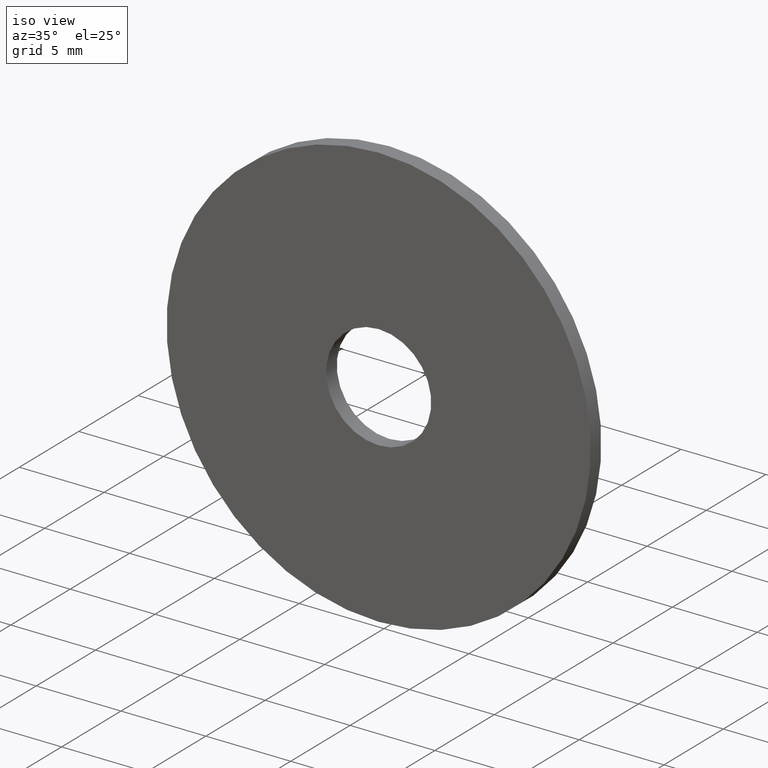
[diagram: clean part render]
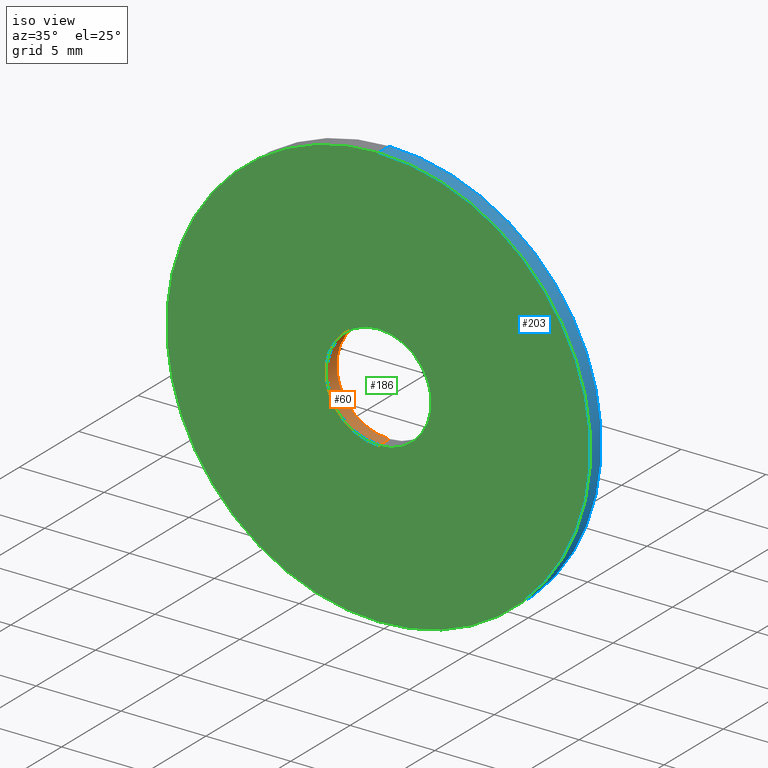
[diagram: same view with three faces highlighted in distinct colors, each labeled with its STEP entity id]
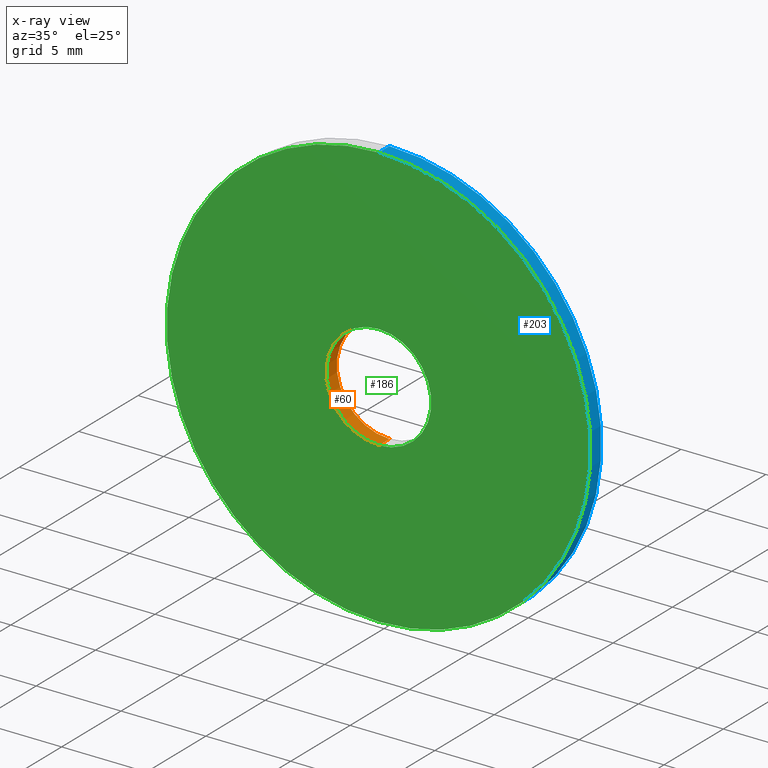
[diagram: x-ray of the same camera — body ghosted, the three highlighted faces saturated]
A machine part, iso view with three faces highlighted in distinct colors.
The next image is the same camera in x-ray (body ghosted, the three faces saturated) — at least one of them is partly hidden behind the body in this view.
Their STEP definitions:

[orange] entity #60 — the highlighted cylindrical surface (partial cylindrical patch) has radius 3.1 mm, axis along (-0, 1, -0).
#4 = VERTEX_POINT ( 'NONE', #39 ) ;
#5 = VERTEX_POINT ( 'NONE', #143 ) ;
#11 = DIRECTION ( 'NONE',  ( -0.000000000000000000, 1.000000000000000000, -0.000000000000000000 ) ) ;
#12 = DIRECTION ( 'NONE',  ( -0.000000000000000000, 1.000000000000000000, -0.000000000000000000 ) ) ;
#13 = CARTESIAN_POINT ( 'NONE',  ( 0.000000000000000000, -0.4500000000000000111, 0.000000000000000000 ) ) ;
#22 = ORIENTED_EDGE ( 'NONE', *, *, #153, .F. ) ;
#27 = AXIS2_PLACEMENT_3D ( 'NONE', #13, #114, #87 ) ;
#28 = DIRECTION ( 'NONE',  ( 0.000000000000000000, 0.000000000000000000, 1.000000000000000000 ) ) ;
#32 = CARTESIAN_POINT ( 'NONE',  ( 0.000000000000000000, -0.4500000000000000111, 0.000000000000000000 ) ) ;
#37 = AXIS2_PLACEMENT_3D ( 'NONE', #32, #11, #28 ) ;
#39 = CARTESIAN_POINT ( 'NONE',  ( 3.796405077356794918E-16, -0.4500000000000000111, -3.100000000000000089 ) ) ;
#40 = EDGE_CURVE ( 'NONE', #5, #185, #121, .T. ) ;
#41 = CIRCLE ( 'NONE', #27, 3.100000000000000089 ) ;
#44 = CARTESIAN_POINT ( 'NONE',  ( 3.796405077356794918E-16, -0.4500000000000000111, -3.100000000000000089 ) ) ;
#56 = ORIENTED_EDGE ( 'NONE', *, *, #40, .F. ) ;
#60 = ADVANCED_FACE ( 'NONE', ( #167 ), #207, .F. ) ;
#65 = VECTOR ( 'NONE', #241, 1000.000000000000000 ) ;
#66 = CARTESIAN_POINT ( 'NONE',  ( 0.000000000000000000, 0.4500000000000000111, 3.100000000000000089 ) ) ;
#70 = CARTESIAN_POINT ( 'NONE',  ( 0.000000000000000000, -0.4500000000000000111, 3.100000000000000089 ) ) ;
#87 = DIRECTION ( 'NONE',  ( 0.000000000000000000, 0.000000000000000000, 1.000000000000000000 ) ) ;
#95 = CIRCLE ( 'NONE', #127, 3.100000000000000089 ) ;
#107 = EDGE_LOOP ( 'NONE', ( #22, #124, #199, #56 ) ) ;
#113 = CARTESIAN_POINT ( 'NONE',  ( 0.000000000000000000, 0.4500000000000000111, 0.000000000000000000 ) ) ;
#114 = DIRECTION ( 'NONE',  ( 0.000000000000000000, 1.000000000000000000, 0.000000000000000000 ) ) ;
#117 = EDGE_CURVE ( 'NONE', #180, #185, #95, .T. ) ;
#121 = LINE ( 'NONE', #70, #231 ) ;
#124 = ORIENTED_EDGE ( 'NONE', *, *, #232, .T. ) ;
#127 = AXIS2_PLACEMENT_3D ( 'NONE', #113, #166, #128 ) ;
#128 = DIRECTION ( 'NONE',  ( 0.000000000000000000, 0.000000000000000000, 1.000000000000000000 ) ) ;
#143 = CARTESIAN_POINT ( 'NONE',  ( 0.000000000000000000, -0.4500000000000000111, 3.100000000000000089 ) ) ;
#149 = CARTESIAN_POINT ( 'NONE',  ( 3.796405077356794918E-16, 0.4500000000000000111, -3.100000000000000089 ) ) ;
#153 = EDGE_CURVE ( 'NONE', #4, #5, #41, .T. ) ;
#164 = LINE ( 'NONE', #44, #65 ) ;
#166 = DIRECTION ( 'NONE',  ( 0.000000000000000000, 1.000000000000000000, 0.000000000000000000 ) ) ;
#167 = FACE_OUTER_BOUND ( 'NONE', #107, .T. ) ;
#180 = VERTEX_POINT ( 'NONE', #149 ) ;
#185 = VERTEX_POINT ( 'NONE', #66 ) ;
#199 = ORIENTED_EDGE ( 'NONE', *, *, #117, .T. ) ;
#207 = CYLINDRICAL_SURFACE ( 'NONE', #37, 3.100000000000000089 ) ;
#231 = VECTOR ( 'NONE', #12, 1000.000000000000000 ) ;
#232 = EDGE_CURVE ( 'NONE', #4, #180, #164, .T. ) ;
#241 = DIRECTION ( 'NONE',  ( -0.000000000000000000, 1.000000000000000000, -0.000000000000000000 ) ) ;

[blue] entity #203 — the highlighted cylindrical surface (partial cylindrical patch) has radius 12.5 mm, axis along (-0, -1, -0).
#7 = VERTEX_POINT ( 'NONE', #122 ) ;
#17 = DIRECTION ( 'NONE',  ( -0.000000000000000000, -1.000000000000000000, -0.000000000000000000 ) ) ;
#26 = DIRECTION ( 'NONE',  ( 0.000000000000000000, 0.000000000000000000, 1.000000000000000000 ) ) ;
#29 = DIRECTION ( 'NONE',  ( -0.000000000000000000, -1.000000000000000000, -0.000000000000000000 ) ) ;
#45 = AXIS2_PLACEMENT_3D ( 'NONE', #194, #242, #93 ) ;
#57 = EDGE_LOOP ( 'NONE', ( #200, #156, #104, #102 ) ) ;
#59 = VECTOR ( 'NONE', #17, 1000.000000000000000 ) ;
#62 = CARTESIAN_POINT ( 'NONE',  ( 1.530808498934191521E-15, 0.4500000000000000111, 12.50000000000000000 ) ) ;
#64 = DIRECTION ( 'NONE',  ( 0.000000000000000000, 0.000000000000000000, 1.000000000000000000 ) ) ;
#68 = FACE_OUTER_BOUND ( 'NONE', #57, .T. ) ;
#84 = EDGE_CURVE ( 'NONE', #7, #179, #190, .T. ) ;
#90 = EDGE_CURVE ( 'NONE', #238, #184, #209, .T. ) ;
#93 = DIRECTION ( 'NONE',  ( 0.000000000000000000, 0.000000000000000000, -1.000000000000000000 ) ) ;
#100 = CIRCLE ( 'NONE', #132, 12.50000000000000000 ) ;
#102 = ORIENTED_EDGE ( 'NONE', *, *, #84, .F. ) ;
#104 = ORIENTED_EDGE ( 'NONE', *, *, #240, .T. ) ;
#122 = CARTESIAN_POINT ( 'NONE',  ( 0.000000000000000000, 0.4500000000000000111, -12.50000000000000000 ) ) ;
#130 = CARTESIAN_POINT ( 'NONE',  ( 1.530808498934191521E-15, 0.4500000000000000111, 12.50000000000000000 ) ) ;
#132 = AXIS2_PLACEMENT_3D ( 'NONE', #206, #189, #64 ) ;
#150 = CYLINDRICAL_SURFACE ( 'NONE', #45, 12.50000000000000000 ) ;
#156 = ORIENTED_EDGE ( 'NONE', *, *, #90, .T. ) ;
#170 = CARTESIAN_POINT ( 'NONE',  ( 1.530808498934191521E-15, -0.4500000000000000111, 12.50000000000000000 ) ) ;
#179 = VERTEX_POINT ( 'NONE', #188 ) ;
#184 = VERTEX_POINT ( 'NONE', #170 ) ;
#187 = AXIS2_PLACEMENT_3D ( 'NONE', #246, #222, #26 ) ;
#188 = CARTESIAN_POINT ( 'NONE',  ( 0.000000000000000000, -0.4500000000000000111, -12.50000000000000000 ) ) ;
#189 = DIRECTION ( 'NONE',  ( 0.000000000000000000, 1.000000000000000000, 0.000000000000000000 ) ) ;
#190 = LINE ( 'NONE', #243, #59 ) ;
#191 = CIRCLE ( 'NONE', #187, 12.50000000000000000 ) ;
#194 = CARTESIAN_POINT ( 'NONE',  ( 0.000000000000000000, 0.4500000000000000111, 0.000000000000000000 ) ) ;
#200 = ORIENTED_EDGE ( 'NONE', *, *, #219, .F. ) ;
#203 = ADVANCED_FACE ( 'NONE', ( #68 ), #150, .T. ) ;
#205 = VECTOR ( 'NONE', #29, 1000.000000000000000 ) ;
#206 = CARTESIAN_POINT ( 'NONE',  ( 0.000000000000000000, -0.4500000000000000111, 0.000000000000000000 ) ) ;
#209 = LINE ( 'NONE', #130, #205 ) ;
#219 = EDGE_CURVE ( 'NONE', #238, #7, #191, .T. ) ;
#222 = DIRECTION ( 'NONE',  ( 0.000000000000000000, 1.000000000000000000, 0.000000000000000000 ) ) ;
#238 = VERTEX_POINT ( 'NONE', #62 ) ;
#240 = EDGE_CURVE ( 'NONE', #184, #179, #100, .T. ) ;
#242 = DIRECTION ( 'NONE',  ( -0.000000000000000000, -1.000000000000000000, -0.000000000000000000 ) ) ;
#243 = CARTESIAN_POINT ( 'NONE',  ( 0.000000000000000000, 0.4500000000000000111, -12.50000000000000000 ) ) ;
#246 = CARTESIAN_POINT ( 'NONE',  ( 0.000000000000000000, 0.4500000000000000111, 0.000000000000000000 ) ) ;

[green] entity #186 — the highlighted planar face has unit normal (0, 1, 0).
#3 = EDGE_CURVE ( 'NONE', #179, #184, #14, .T. ) ;
#4 = VERTEX_POINT ( 'NONE', #39 ) ;
#5 = VERTEX_POINT ( 'NONE', #143 ) ;
#13 = CARTESIAN_POINT ( 'NONE',  ( 0.000000000000000000, -0.4500000000000000111, 0.000000000000000000 ) ) ;
#14 = CIRCLE ( 'NONE', #233, 12.50000000000000000 ) ;
#15 = DIRECTION ( 'NONE',  ( 0.000000000000000000, 1.000000000000000000, 0.000000000000000000 ) ) ;
#23 = ORIENTED_EDGE ( 'NONE', *, *, #3, .F. ) ;
#25 = EDGE_LOOP ( 'NONE', ( #23, #142 ) ) ;
#27 = AXIS2_PLACEMENT_3D ( 'NONE', #13, #114, #87 ) ;
#38 = DIRECTION ( 'NONE',  ( 0.000000000000000000, 0.000000000000000000, 1.000000000000000000 ) ) ;
#39 = CARTESIAN_POINT ( 'NONE',  ( 3.796405077356794918E-16, -0.4500000000000000111, -3.100000000000000089 ) ) ;
#41 = CIRCLE ( 'NONE', #27, 3.100000000000000089 ) ;
#42 = ORIENTED_EDGE ( 'NONE', *, *, #153, .T. ) ;
#48 = FACE_OUTER_BOUND ( 'NONE', #25, .T. ) ;
#64 = DIRECTION ( 'NONE',  ( 0.000000000000000000, 0.000000000000000000, 1.000000000000000000 ) ) ;
#72 = EDGE_CURVE ( 'NONE', #5, #4, #177, .T. ) ;
#87 = DIRECTION ( 'NONE',  ( 0.000000000000000000, 0.000000000000000000, 1.000000000000000000 ) ) ;
#88 = DIRECTION ( 'NONE',  ( 0.000000000000000000, 1.000000000000000000, 0.000000000000000000 ) ) ;
#91 = AXIS2_PLACEMENT_3D ( 'NONE', #147, #15, #211 ) ;
#100 = CIRCLE ( 'NONE', #132, 12.50000000000000000 ) ;
#114 = DIRECTION ( 'NONE',  ( 0.000000000000000000, 1.000000000000000000, 0.000000000000000000 ) ) ;
#129 = PLANE ( 'NONE',  #91 ) ;
#132 = AXIS2_PLACEMENT_3D ( 'NONE', #206, #189, #64 ) ;
#141 = CARTESIAN_POINT ( 'NONE',  ( 0.000000000000000000, -0.4500000000000000111, 0.000000000000000000 ) ) ;
#142 = ORIENTED_EDGE ( 'NONE', *, *, #240, .F. ) ;
#143 = CARTESIAN_POINT ( 'NONE',  ( 0.000000000000000000, -0.4500000000000000111, 3.100000000000000089 ) ) ;
#147 = CARTESIAN_POINT ( 'NONE',  ( 0.000000000000000000, -0.4500000000000000111, 0.000000000000000000 ) ) ;
#153 = EDGE_CURVE ( 'NONE', #4, #5, #41, .T. ) ;
#168 = CARTESIAN_POINT ( 'NONE',  ( 0.000000000000000000, -0.4500000000000000111, 0.000000000000000000 ) ) ;
#170 = CARTESIAN_POINT ( 'NONE',  ( 1.530808498934191521E-15, -0.4500000000000000111, 12.50000000000000000 ) ) ;
#177 = CIRCLE ( 'NONE', #197, 3.100000000000000089 ) ;
#179 = VERTEX_POINT ( 'NONE', #188 ) ;
#184 = VERTEX_POINT ( 'NONE', #170 ) ;
#186 = ADVANCED_FACE ( 'NONE', ( #192, #48 ), #129, .F. ) ;
#188 = CARTESIAN_POINT ( 'NONE',  ( 0.000000000000000000, -0.4500000000000000111, -12.50000000000000000 ) ) ;
#189 = DIRECTION ( 'NONE',  ( 0.000000000000000000, 1.000000000000000000, 0.000000000000000000 ) ) ;
#192 = FACE_BOUND ( 'NONE', #201, .T. ) ;
#197 = AXIS2_PLACEMENT_3D ( 'NONE', #168, #88, #223 ) ;
#201 = EDGE_LOOP ( 'NONE', ( #235, #42 ) ) ;
#206 = CARTESIAN_POINT ( 'NONE',  ( 0.000000000000000000, -0.4500000000000000111, 0.000000000000000000 ) ) ;
#211 = DIRECTION ( 'NONE',  ( 0.000000000000000000, -0.000000000000000000, 1.000000000000000000 ) ) ;
#218 = DIRECTION ( 'NONE',  ( 0.000000000000000000, 1.000000000000000000, 0.000000000000000000 ) ) ;
#223 = DIRECTION ( 'NONE',  ( 0.000000000000000000, 0.000000000000000000, 1.000000000000000000 ) ) ;
#233 = AXIS2_PLACEMENT_3D ( 'NONE', #141, #218, #38 ) ;
#235 = ORIENTED_EDGE ( 'NONE', *, *, #72, .T. ) ;
#240 = EDGE_CURVE ( 'NONE', #184, #179, #100, .T. ) ;